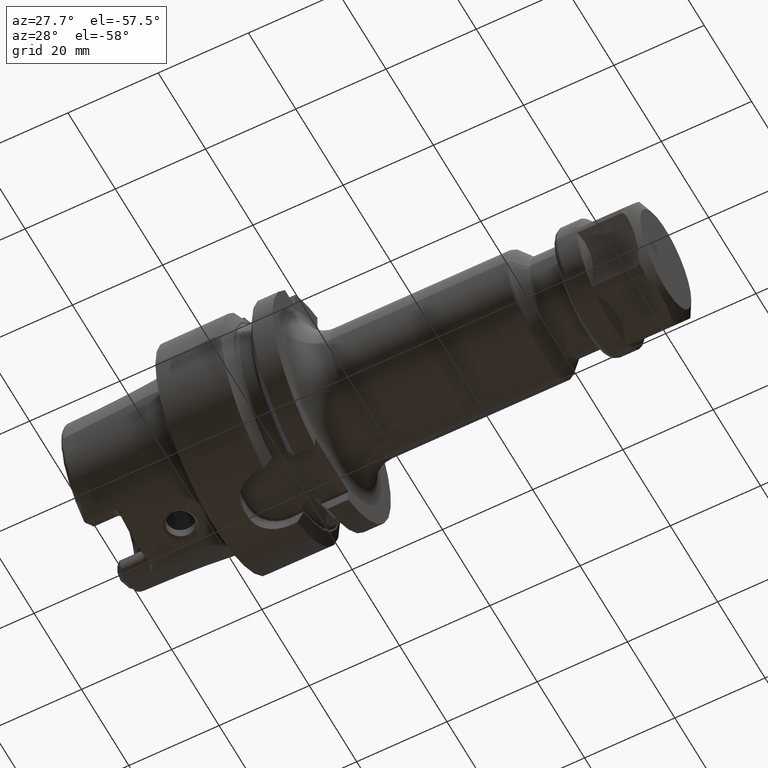
[diagram: clean part render]
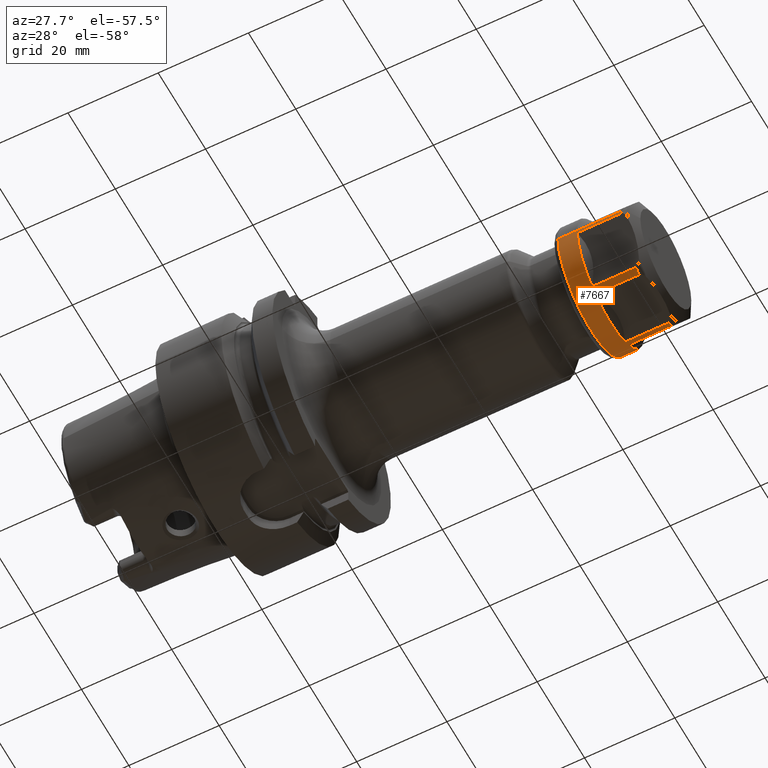
[diagram: same view with one face highlighted and labeled with its STEP entity id]
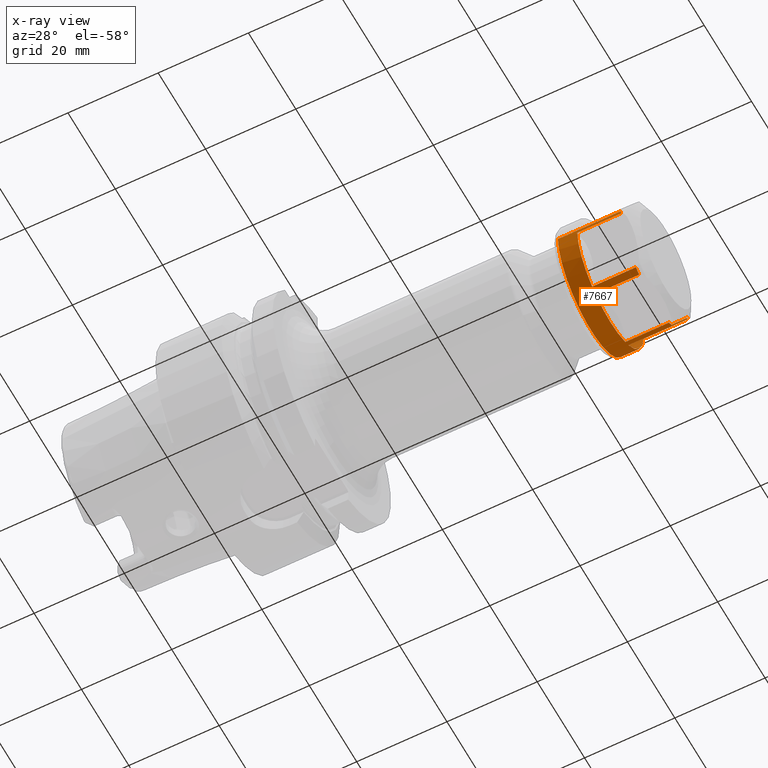
[diagram: x-ray of the same camera — body ghosted, the highlighted face saturated]
A machine part, auxiliary view. The second image highlights one B-rep face of the part: STEP entity #7667.
The next image is the same camera in x-ray: the body ghosted, the highlighted face saturated — about 0% of this face is hidden behind the body in this view.
In plain terms, the highlighted cylindrical surface (partial cylindrical patch) has radius 14 mm, axis along (1, 0, 0).
Its self-contained STEP definition (entity closure, byte-faithful):
#7008=DIRECTION('',(9.999999999920E-1,-3.872004474659E-6,-1.005862216071E-6));
#7009=VECTOR('',#7008,9.691332242427E0);
#7010=CARTESIAN_POINT('',(5.510591546297E0,-1.397766007565E1,
-7.899078348947E-1));
#7011=LINE('',#7010,#7009);
#7012=DIRECTION('',(-1.E0,0.E0,0.E0));
#7013=VECTOR('',#7012,9.691561833753E0);
#7014=CARTESIAN_POINT('',(1.520192378865E1,-7.672937494076E0,
-1.171008241696E1));
#7015=LINE('',#7014,#7013);
#7032=CARTESIAN_POINT('',(5.510095784574E0,3.604537624320E-3,
2.338467829302E-3));
#7033=DIRECTION('',(-1.E0,0.E0,0.E0));
#7034=DIRECTION('',(0.E0,-5.481704884959E-1,-8.363666155115E-1));
#7035=AXIS2_PLACEMENT_3D('',#7032,#7033,#7034);
#7037=CARTESIAN_POINT('',(1.520192378865E1,0.E0,0.E0));
#7038=DIRECTION('',(-1.E0,0.E0,0.E0));
#7039=DIRECTION('',(0.E0,-4.503400076042E-1,-8.928571428571E-1));
#7040=AXIS2_PLACEMENT_3D('',#7037,#7038,#7039);
#7042=CARTESIAN_POINT('',(1.520192378865E1,0.E0,0.E0));
#7043=DIRECTION('',(-1.E0,0.E0,0.E0));
#7044=DIRECTION('',(0.E0,5.480669638626E-1,-8.364344583543E-1));
#7045=AXIS2_PLACEMENT_3D('',#7042,#7043,#7044);
#7047=CARTESIAN_POINT('',(1.520192378865E1,0.E0,0.E0));
#7048=DIRECTION('',(-1.E0,0.E0,0.E0));
#7049=DIRECTION('',(0.E0,1.E0,0.E0));
#7050=AXIS2_PLACEMENT_3D('',#7047,#7048,#7049);
#7052=DIRECTION('',(-1.E0,0.E0,1.133010541669E-10));
#7053=VECTOR('',#7052,1.395192378865E1);
#7054=CARTESIAN_POINT('',(1.520192378865E1,1.4E1,-1.972953879608E-10));
#7055=LINE('',#7054,#7053);
#7056=CARTESIAN_POINT('',(1.25E0,0.E0,0.E0));
#7057=DIRECTION('',(-1.E0,0.E0,0.E0));
#7058=DIRECTION('',(0.E0,1.E0,0.E0));
#7059=AXIS2_PLACEMENT_3D('',#7056,#7057,#7058);
#7061=DIRECTION('',(-1.E0,0.E0,-1.133011566448E-10));
#7062=VECTOR('',#7061,1.395192378865E1);
#7063=CARTESIAN_POINT('',(1.520192378865E1,-1.4E1,1.972953760202E-10));
#7064=LINE('',#7063,#7062);
#7065=CARTESIAN_POINT('',(1.520192378865E1,0.E0,0.E0));
#7066=DIRECTION('',(-1.E0,0.E0,0.E0));
#7067=DIRECTION('',(0.E0,-9.984069714668E-1,-5.642268450283E-2));
#7068=AXIS2_PLACEMENT_3D('',#7065,#7066,#7067);
#7070=CARTESIAN_POINT('',(1.520192378865E1,7.672937494076E0,-1.171008241696E1));
#7088=CARTESIAN_POINT('',(1.520192378865E1,6.304760106459E0,-1.25E1));
#7098=CARTESIAN_POINT('',(1.520192378865E1,-7.672937494076E0,
-1.171008241696E1));
#7100=CARTESIAN_POINT('',(1.520192378865E1,-6.304760106459E0,-1.25E1));
#7110=CARTESIAN_POINT('',(1.520192378865E1,-1.397769760054E1,
-7.899175830396E-1));
#7178=CARTESIAN_POINT('',(1.520192378865E1,1.397769760054E1,
-7.899175830396E-1));
#7206=DIRECTION('',(9.999999999765E-1,-5.552223046371E-6,4.017836804348E-6));
#7207=VECTOR('',#7206,9.691630288463E0);
#7208=CARTESIAN_POINT('',(5.510293500412E0,7.672991304169E0,-1.171012135635E1));
#7209=LINE('',#7208,#7207);
#7210=DIRECTION('',(-1.E0,0.E0,0.E0));
#7211=VECTOR('',#7210,9.691378545098E0);
#7212=CARTESIAN_POINT('',(1.520192378865E1,1.397769760054E1,
-7.899175830396E-1));
#7213=LINE('',#7212,#7211);
#7230=CARTESIAN_POINT('',(5.510084439007E0,-3.505438817552E-3,
2.289821475420E-3));
#7231=DIRECTION('',(-1.E0,0.E0,0.E0));
#7232=DIRECTION('',(0.E0,9.983985459437E-1,-5.657157817732E-2));
#7233=AXIS2_PLACEMENT_3D('',#7230,#7231,#7232);
#7251=DIRECTION('',(9.999999999999E-1,-9.964367159688E-8,4.341630987369E-7));
#7252=VECTOR('',#7251,9.691827833895E0);
#7253=CARTESIAN_POINT('',(5.510095954753E0,-6.304759140730E0,
-1.250000420783E1));
#7254=LINE('',#7253,#7252);
#7255=DIRECTION('',(-1.E0,0.E0,0.E0));
#7256=VECTOR('',#7255,9.691824900383E0);
#7257=CARTESIAN_POINT('',(1.520192378865E1,6.304760106459E0,-1.25E1));
#7258=LINE('',#7257,#7256);
#7275=CARTESIAN_POINT('',(5.510019594414E0,1.294353643637E-6,
9.212448762081E-4));
#7276=DIRECTION('',(-1.E0,0.E0,0.E0));
#7277=DIRECTION('',(0.E0,4.503134764951E-1,-8.928705241449E-1));
#7278=AXIS2_PLACEMENT_3D('',#7275,#7276,#7277);
#7494=CARTESIAN_POINT('',(1.25E0,1.4E1,0.E0));
#7495=CARTESIAN_POINT('',(1.25E0,-1.4E1,0.E0));
#7496=VERTEX_POINT('',#7494);
#7497=VERTEX_POINT('',#7495);
#7502=CARTESIAN_POINT('',(1.520192378865E1,1.4E1,-1.972953879608E-10));
#7503=VERTEX_POINT('',#7502);
#7504=CARTESIAN_POINT('',(1.520192378865E1,-1.4E1,1.972953760202E-10));
#7505=VERTEX_POINT('',#7504);
#7524=VERTEX_POINT('',#7098);
#7525=VERTEX_POINT('',#7110);
#7526=VERTEX_POINT('',#7178);
#7527=VERTEX_POINT('',#7070);
#7528=VERTEX_POINT('',#7088);
#7529=VERTEX_POINT('',#7100);
#7534=CARTESIAN_POINT('',(5.510095784574E0,-7.673083408015E0,
-1.171030504395E1));
#7535=CARTESIAN_POINT('',(5.510095784574E0,-1.397816374626E1,
-7.899439973725E-1));
#7536=VERTEX_POINT('',#7534);
#7537=VERTEX_POINT('',#7535);
#7538=CARTESIAN_POINT('',(5.510019594414E0,6.304795814642E0,-1.250007080131E1));
#7539=CARTESIAN_POINT('',(5.510019594414E0,-6.304795289710E0,
-1.250006976046E1));
#7540=VERTEX_POINT('',#7538);
#7541=VERTEX_POINT('',#7539);
#7542=CARTESIAN_POINT('',(5.510084439007E0,1.397815769182E1,
-7.899436528792E-1));
#7543=CARTESIAN_POINT('',(5.510084439007E0,7.673076419476E0,-1.171029438310E1));
#7544=VERTEX_POINT('',#7542);
#7545=VERTEX_POINT('',#7543);
#7631=CARTESIAN_POINT('',(-8.9E-1,0.E0,0.E0));
#7632=DIRECTION('',(1.E0,0.E0,0.E0));
#7633=DIRECTION('',(0.E0,-1.E0,0.E0));
#7634=AXIS2_PLACEMENT_3D('',#7631,#7632,#7633);
#7635=CYLINDRICAL_SURFACE('',#7634,1.4E1);
#7636=ORIENTED_EDGE('',*,*,#7624,.F.);
#7637=ORIENTED_EDGE('',*,*,#7612,.F.);
#7639=ORIENTED_EDGE('',*,*,#7638,.F.);
#7641=ORIENTED_EDGE('',*,*,#7640,.F.);
#7643=ORIENTED_EDGE('',*,*,#7642,.F.);
#7645=ORIENTED_EDGE('',*,*,#7644,.F.);
#7647=ORIENTED_EDGE('',*,*,#7646,.F.);
#7649=ORIENTED_EDGE('',*,*,#7648,.F.);
#7651=ORIENTED_EDGE('',*,*,#7650,.F.);
#7653=ORIENTED_EDGE('',*,*,#7652,.F.);
#7655=ORIENTED_EDGE('',*,*,#7654,.F.);
#7657=ORIENTED_EDGE('',*,*,#7656,.T.);
#7659=ORIENTED_EDGE('',*,*,#7658,.T.);
#7661=ORIENTED_EDGE('',*,*,#7660,.F.);
#7663=ORIENTED_EDGE('',*,*,#7662,.F.);
#7664=ORIENTED_EDGE('',*,*,#7605,.F.);
#7665=EDGE_LOOP('',(#7636,#7637,#7639,#7641,#7643,#7645,#7647,#7649,#7651,#7653,
#7655,#7657,#7659,#7661,#7663,#7664));
#7666=FACE_OUTER_BOUND('',#7665,.F.);
#7667=ADVANCED_FACE('',(#7666),#7635,.T.);
#7036=CIRCLE('',#7035,1.400419779383E1);
#7041=CIRCLE('',#7040,1.4E1);
#7046=CIRCLE('',#7045,1.4E1);
#7051=CIRCLE('',#7050,1.4E1);
#7060=CIRCLE('',#7059,1.4E1);
#7069=CIRCLE('',#7068,1.4E1);
#7234=CIRCLE('',#7233,1.400409003743E1);
#7279=CIRCLE('',#7278,1.400090125963E1);
#7605=EDGE_CURVE('',#7537,#7525,#7011,.T.);
#7612=EDGE_CURVE('',#7524,#7536,#7015,.T.);
#7624=EDGE_CURVE('',#7536,#7537,#7036,.T.);
#7638=EDGE_CURVE('',#7529,#7524,#7041,.T.);
#7640=EDGE_CURVE('',#7541,#7529,#7254,.T.);
#7642=EDGE_CURVE('',#7540,#7541,#7279,.T.);
#7644=EDGE_CURVE('',#7528,#7540,#7258,.T.);
#7646=EDGE_CURVE('',#7527,#7528,#7046,.T.);
#7648=EDGE_CURVE('',#7545,#7527,#7209,.T.);
#7650=EDGE_CURVE('',#7544,#7545,#7234,.T.);
#7652=EDGE_CURVE('',#7526,#7544,#7213,.T.);
#7654=EDGE_CURVE('',#7503,#7526,#7051,.T.);
#7656=EDGE_CURVE('',#7503,#7496,#7055,.T.);
#7658=EDGE_CURVE('',#7496,#7497,#7060,.T.);
#7660=EDGE_CURVE('',#7505,#7497,#7064,.T.);
#7662=EDGE_CURVE('',#7525,#7505,#7069,.T.);